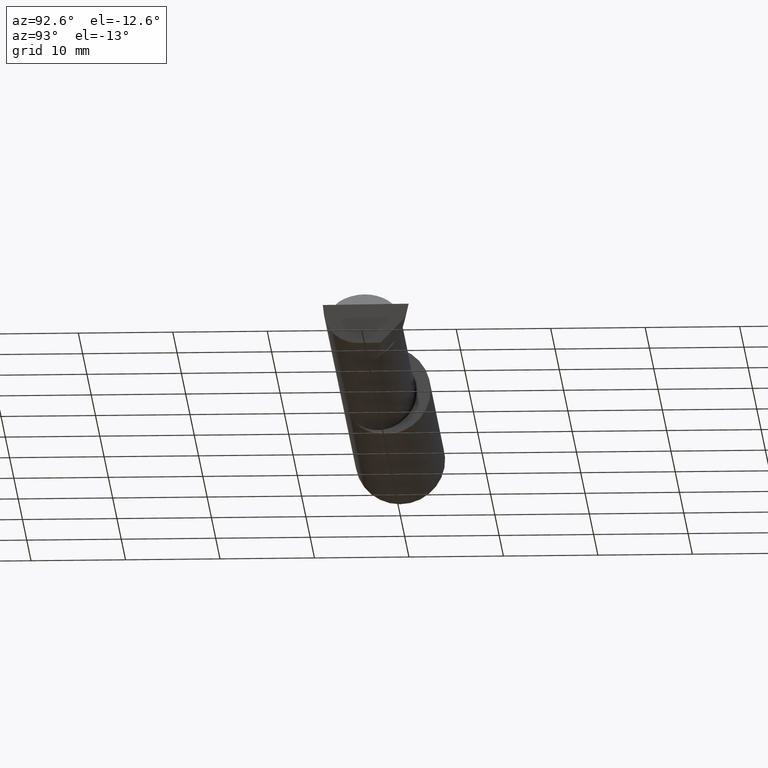
[diagram: clean part render]
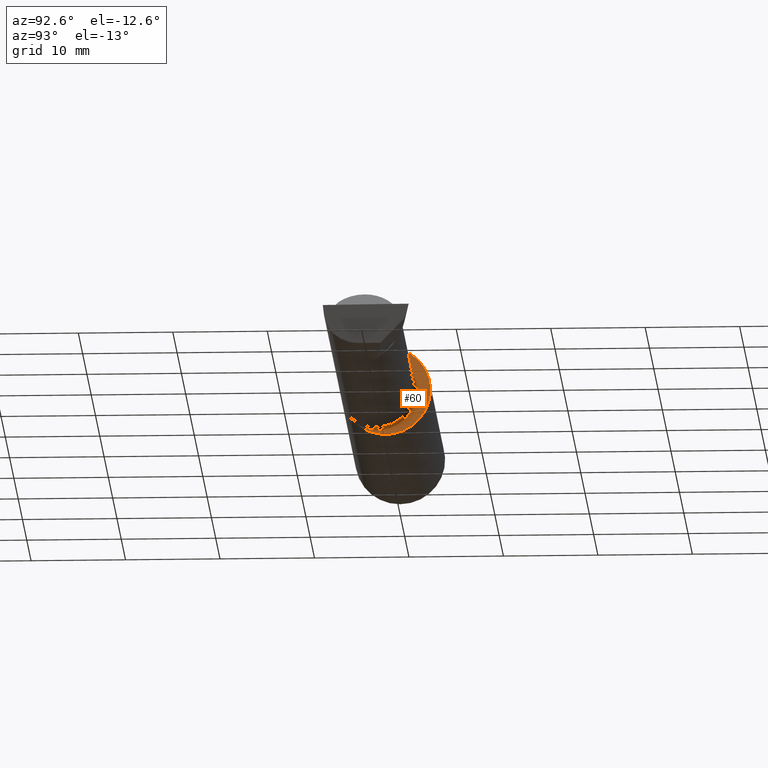
[diagram: same view with one face highlighted and labeled with its STEP entity id]
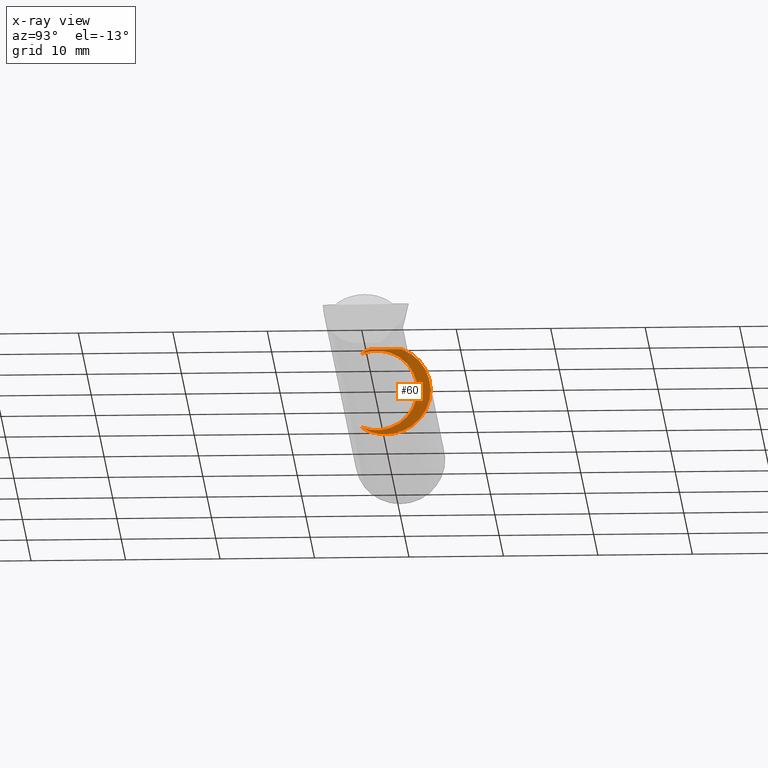
[diagram: x-ray of the same camera — body ghosted, the highlighted face saturated]
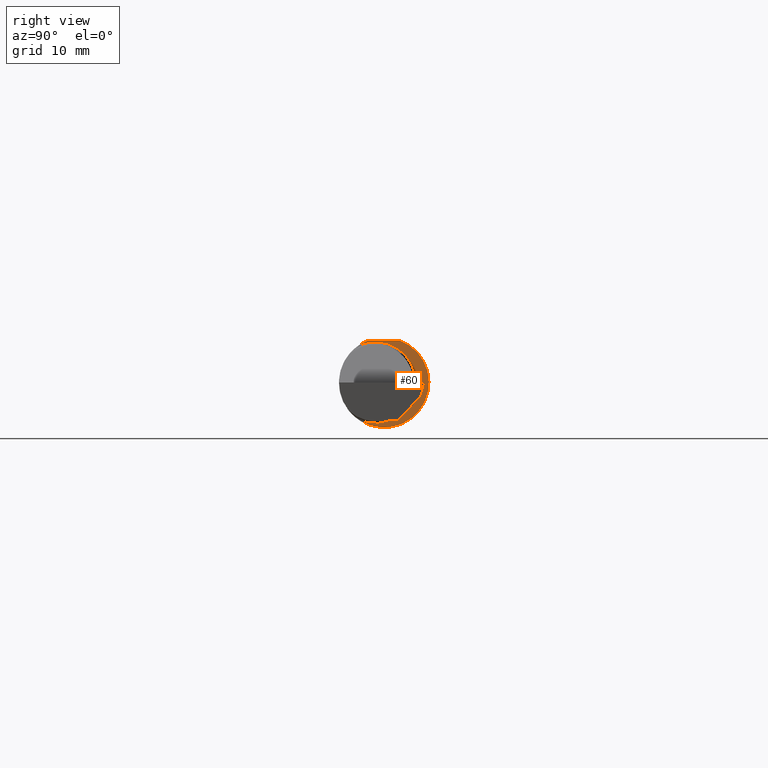
[diagram: same view with one face highlighted and labeled with its STEP entity id]
A machine part, auxiliary view. The second image highlights one B-rep face of the part: STEP entity #60.
The next image is the same camera in x-ray: the body ghosted, the highlighted face saturated — about 16% of this face is hidden behind the body in this view.
A second angle (right view) of the same face is appended — the face is thin or edge-on in the first view.
In plain terms, the highlighted planar face has unit normal (1, -0, 0).
Its self-contained STEP definition (entity closure, byte-faithful):
#27 = VERTEX_POINT ( 'NONE', #175 ) ;
#38 = CARTESIAN_POINT ( 'NONE',  ( 1.350000000000000311, 0.2373500000000000332, 0.1753499999999999504 ) ) ;
#42 = DIRECTION ( 'NONE',  ( -5.691349986800549142E-18, -1.000000000000000000, 1.438723400918613551E-16 ) ) ;
#45 = VERTEX_POINT ( 'NONE', #249 ) ;
#47 = ORIENTED_EDGE ( 'NONE', *, *, #164, .T. ) ;
#60 = ADVANCED_FACE ( 'NONE', ( #286 ), #210, .T. ) ;
#77 = CARTESIAN_POINT ( 'NONE',  ( 1.350000000000000311, 0.0000000000000000000, 0.0000000000000000000 ) ) ;
#95 = VERTEX_POINT ( 'NONE', #159 ) ;
#132 = AXIS2_PLACEMENT_3D ( 'NONE', #547, #528, #231 ) ;
#134 = CIRCLE ( 'NONE', #192, 0.1873499999999999888 ) ;
#139 = ORIENTED_EDGE ( 'NONE', *, *, #232, .T. ) ;
#159 = CARTESIAN_POINT ( 'NONE',  ( 1.350000000000000311, -0.1013606951871662831, -0.1575627873933891920 ) ) ;
#164 = EDGE_CURVE ( 'NONE', #45, #394, #536, .T. ) ;
#175 = CARTESIAN_POINT ( 'NONE',  ( 1.350000000000000311, -0.1013606951871662831, 0.1575627873933891920 ) ) ;
#178 = DIRECTION ( 'NONE',  ( 0.0000000000000000000, 1.000000000000000000, 0.0000000000000000000 ) ) ;
#186 = AXIS2_PLACEMENT_3D ( 'NONE', #356, #460, #542 ) ;
#192 = AXIS2_PLACEMENT_3D ( 'NONE', #77, #583, #178 ) ;
#193 = CARTESIAN_POINT ( 'NONE',  ( 1.350000000000000311, -0.06597272163553659363, 0.1753499999999999781 ) ) ;
#196 = DIRECTION ( 'NONE',  ( 5.691349986800549142E-18, 1.000000000000000000, 0.0000000000000000000 ) ) ;
#201 = DIRECTION ( 'NONE',  ( 1.000000000000000000, -5.691349986800549142E-18, 0.0000000000000000000 ) ) ;
#210 = PLANE ( 'NONE',  #385 ) ;
#211 = CARTESIAN_POINT ( 'NONE',  ( 1.350000000000000311, 0.1326499999999998791, 0.0000000000000000000 ) ) ;
#231 = DIRECTION ( 'NONE',  ( 0.0000000000000000000, -1.000000000000000000, 0.0000000000000000000 ) ) ;
#232 = EDGE_CURVE ( 'NONE', #95, #45, #595, .T. ) ;
#249 = CARTESIAN_POINT ( 'NONE',  ( 1.350000000000000311, 0.06597272163553680180, 0.1753499999999999781 ) ) ;
#286 = FACE_OUTER_BOUND ( 'NONE', #409, .T. ) ;
#293 = VECTOR ( 'NONE', #42, 39.37007874015748143 ) ;
#310 = CIRCLE ( 'NONE', #132, 0.1700499999999998679 ) ;
#356 = CARTESIAN_POINT ( 'NONE',  ( 1.350000000000000311, 0.0000000000000000000, 0.0000000000000000000 ) ) ;
#385 = AXIS2_PLACEMENT_3D ( 'NONE', #211, #201, #196 ) ;
#394 = VERTEX_POINT ( 'NONE', #193 ) ;
#409 = EDGE_LOOP ( 'NONE', ( #139, #47, #546, #553 ) ) ;
#460 = DIRECTION ( 'NONE',  ( 1.000000000000000000, -5.691349986800549142E-18, 0.0000000000000000000 ) ) ;
#487 = EDGE_CURVE ( 'NONE', #27, #95, #310, .T. ) ;
#528 = DIRECTION ( 'NONE',  ( -1.000000000000000000, 5.691349986800549142E-18, -0.0000000000000000000 ) ) ;
#536 = LINE ( 'NONE', #38, #293 ) ;
#542 = DIRECTION ( 'NONE',  ( 0.0000000000000000000, 1.000000000000000000, 0.0000000000000000000 ) ) ;
#546 = ORIENTED_EDGE ( 'NONE', *, *, #568, .T. ) ;
#547 = CARTESIAN_POINT ( 'NONE',  ( 1.350000000000000311, -0.03739999999999999575, 0.0000000000000000000 ) ) ;
#553 = ORIENTED_EDGE ( 'NONE', *, *, #487, .T. ) ;
#568 = EDGE_CURVE ( 'NONE', #394, #27, #134, .T. ) ;
#583 = DIRECTION ( 'NONE',  ( 1.000000000000000000, -5.691349986800549142E-18, 0.0000000000000000000 ) ) ;
#595 = CIRCLE ( 'NONE', #186, 0.1873499999999999888 ) ;